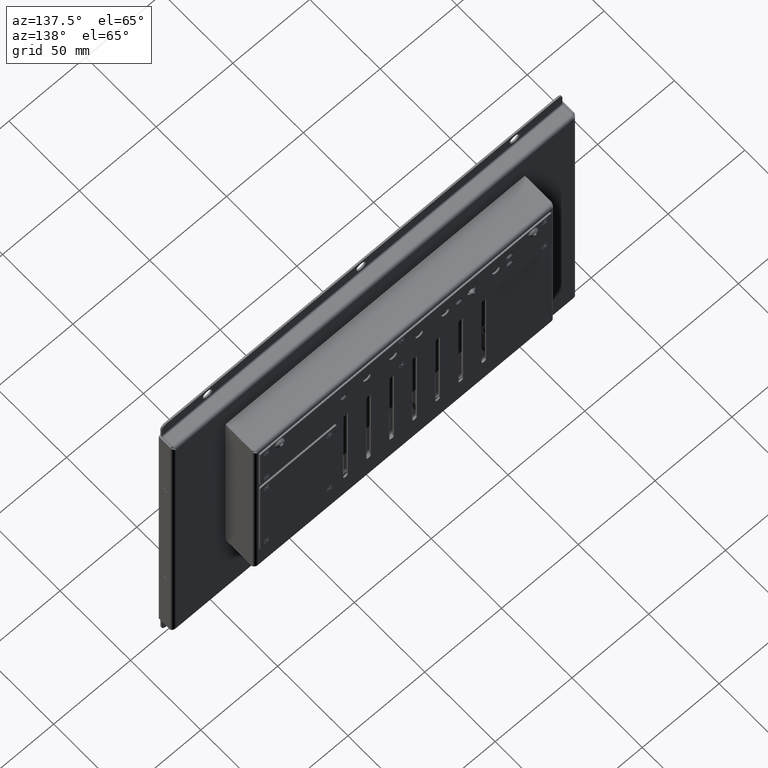
[diagram: clean part render]
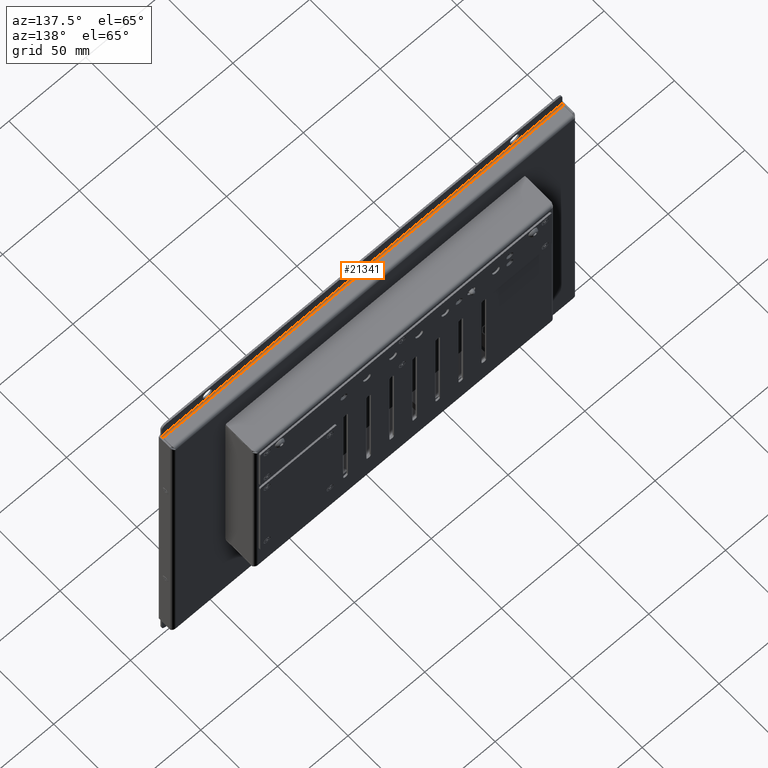
[diagram: same view with one face highlighted and labeled with its STEP entity id]
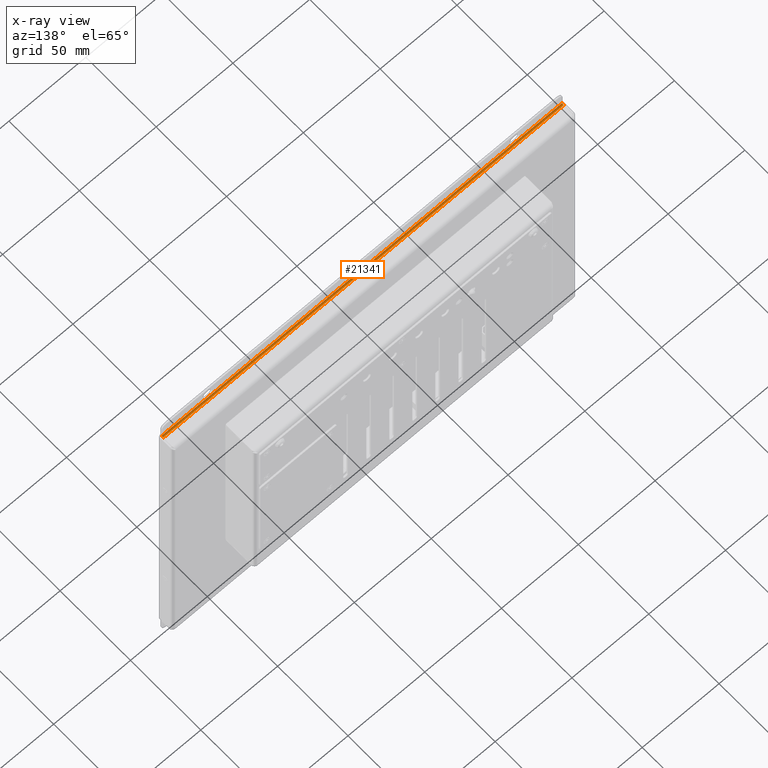
[diagram: x-ray of the same camera — body ghosted, the highlighted face saturated]
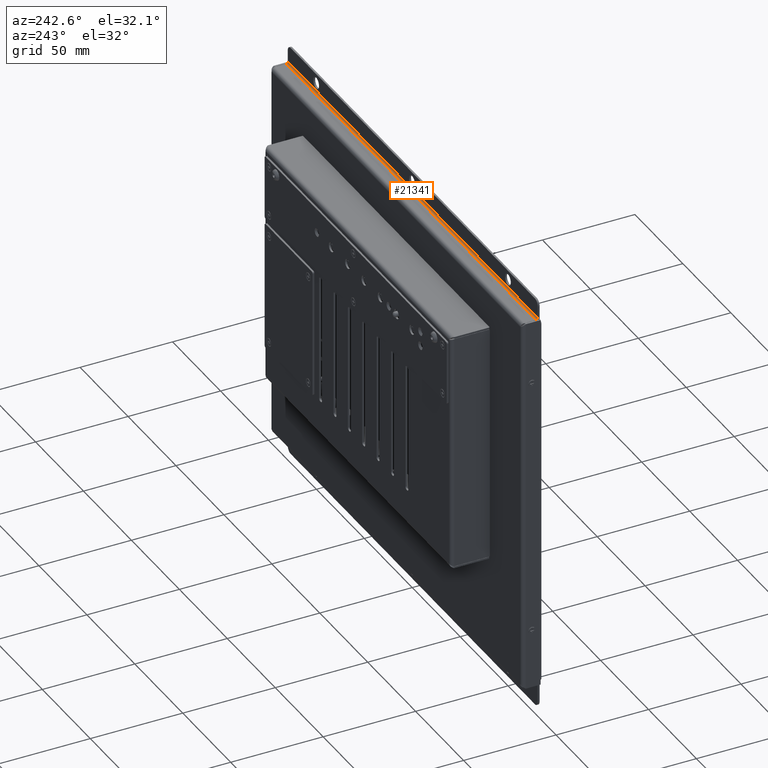
[diagram: same view with one face highlighted and labeled with its STEP entity id]
A machine part, auxiliary view. The second image highlights one B-rep face of the part: STEP entity #21341.
The next image is the same camera in x-ray: the body ghosted, the highlighted face saturated — about 0% of this face is hidden behind the body in this view.
A second angle (auxiliary view) of the same face is appended — the face is thin or edge-on in the first view.
In plain terms, the highlighted cylindrical surface (edge-blend (fillet) strip) has radius 1 mm, axis along (-1, 0, 0).
Its self-contained STEP definition (entity closure, byte-faithful):
#3186=LINE('',#37532,#4941);
#3211=LINE('',#37601,#4966);
#4941=VECTOR('',#28421,10.);
#4966=VECTOR('',#28500,10.);
#5441=CYLINDRICAL_SURFACE('',#23502,0.999999999999978);
#6421=FACE_OUTER_BOUND('',#7793,.T.);
#7793=EDGE_LOOP('',(#18777,#18778,#18779,#18780));
#8792=CIRCLE('',#23498,1.00000000000001);
#8793=CIRCLE('',#23500,0.999999999999979);
#10615=VERTEX_POINT('',#37529);
#10616=VERTEX_POINT('',#37531);
#10632=VERTEX_POINT('',#37592);
#10633=VERTEX_POINT('',#37596);
#13394=EDGE_CURVE('',#10615,#10616,#3186,.T.);
#13425=EDGE_CURVE('',#10632,#10616,#8792,.T.);
#13428=EDGE_CURVE('',#10633,#10615,#8793,.T.);
#13429=EDGE_CURVE('',#10632,#10633,#3211,.T.);
#18777=ORIENTED_EDGE('',*,*,#13394,.F.);
#18778=ORIENTED_EDGE('',*,*,#13428,.F.);
#18779=ORIENTED_EDGE('',*,*,#13429,.F.);
#18780=ORIENTED_EDGE('',*,*,#13425,.T.);
#21341=ADVANCED_FACE('',(#6421),#5441,.F.);
#23498=AXIS2_PLACEMENT_3D('',#37593,#28488,#28489);
#23500=AXIS2_PLACEMENT_3D('',#37598,#28494,#28495);
#23502=AXIS2_PLACEMENT_3D('',#37600,#28498,#28499);
#28421=DIRECTION('',(1.,1.34488857746371E-16,-1.34488857746372E-16));
#28488=DIRECTION('center_axis',(1.,1.34488857746371E-16,-1.13451074765767E-30));
#28489=DIRECTION('ref_axis',(0.,-1.,-3.33066907387542E-15));
#28494=DIRECTION('center_axis',(1.,1.34488857746371E-16,-1.13451074765767E-30));
#28495=DIRECTION('ref_axis',(0.,-1.,-3.33066907387554E-15));
#28498=DIRECTION('center_axis',(1.,1.34488857746371E-16,-1.13451074765767E-30));
#28499=DIRECTION('ref_axis',(1.34488857746371E-16,-1.,8.43572297860705E-15));
#28500=DIRECTION('',(-1.,-1.34488857746371E-16,-1.54083524314431E-32));
#37529=CARTESIAN_POINT('',(-130.4,102.75,-8.00000000000001));
#37531=CARTESIAN_POINT('',(130.4,102.75,-8.00000000000004));
#37532=CARTESIAN_POINT('',(-4.71415883432514E-15,102.75,-8.00000000000001));
#37592=CARTESIAN_POINT('',(130.4,101.75,-7.00000000000003));
#37593=CARTESIAN_POINT('Origin',(130.4,102.75,-7.00000000000002));
#37596=CARTESIAN_POINT('',(-130.4,101.75,-7.00000000000003));
#37598=CARTESIAN_POINT('Origin',(-130.4,102.75,-7.00000000000002));
#37600=CARTESIAN_POINT('Origin',(-1.93663955154774E-16,102.75,-7.00000000000002));
#37601=CARTESIAN_POINT('',(-65.2,101.75,-7.00000000000003));